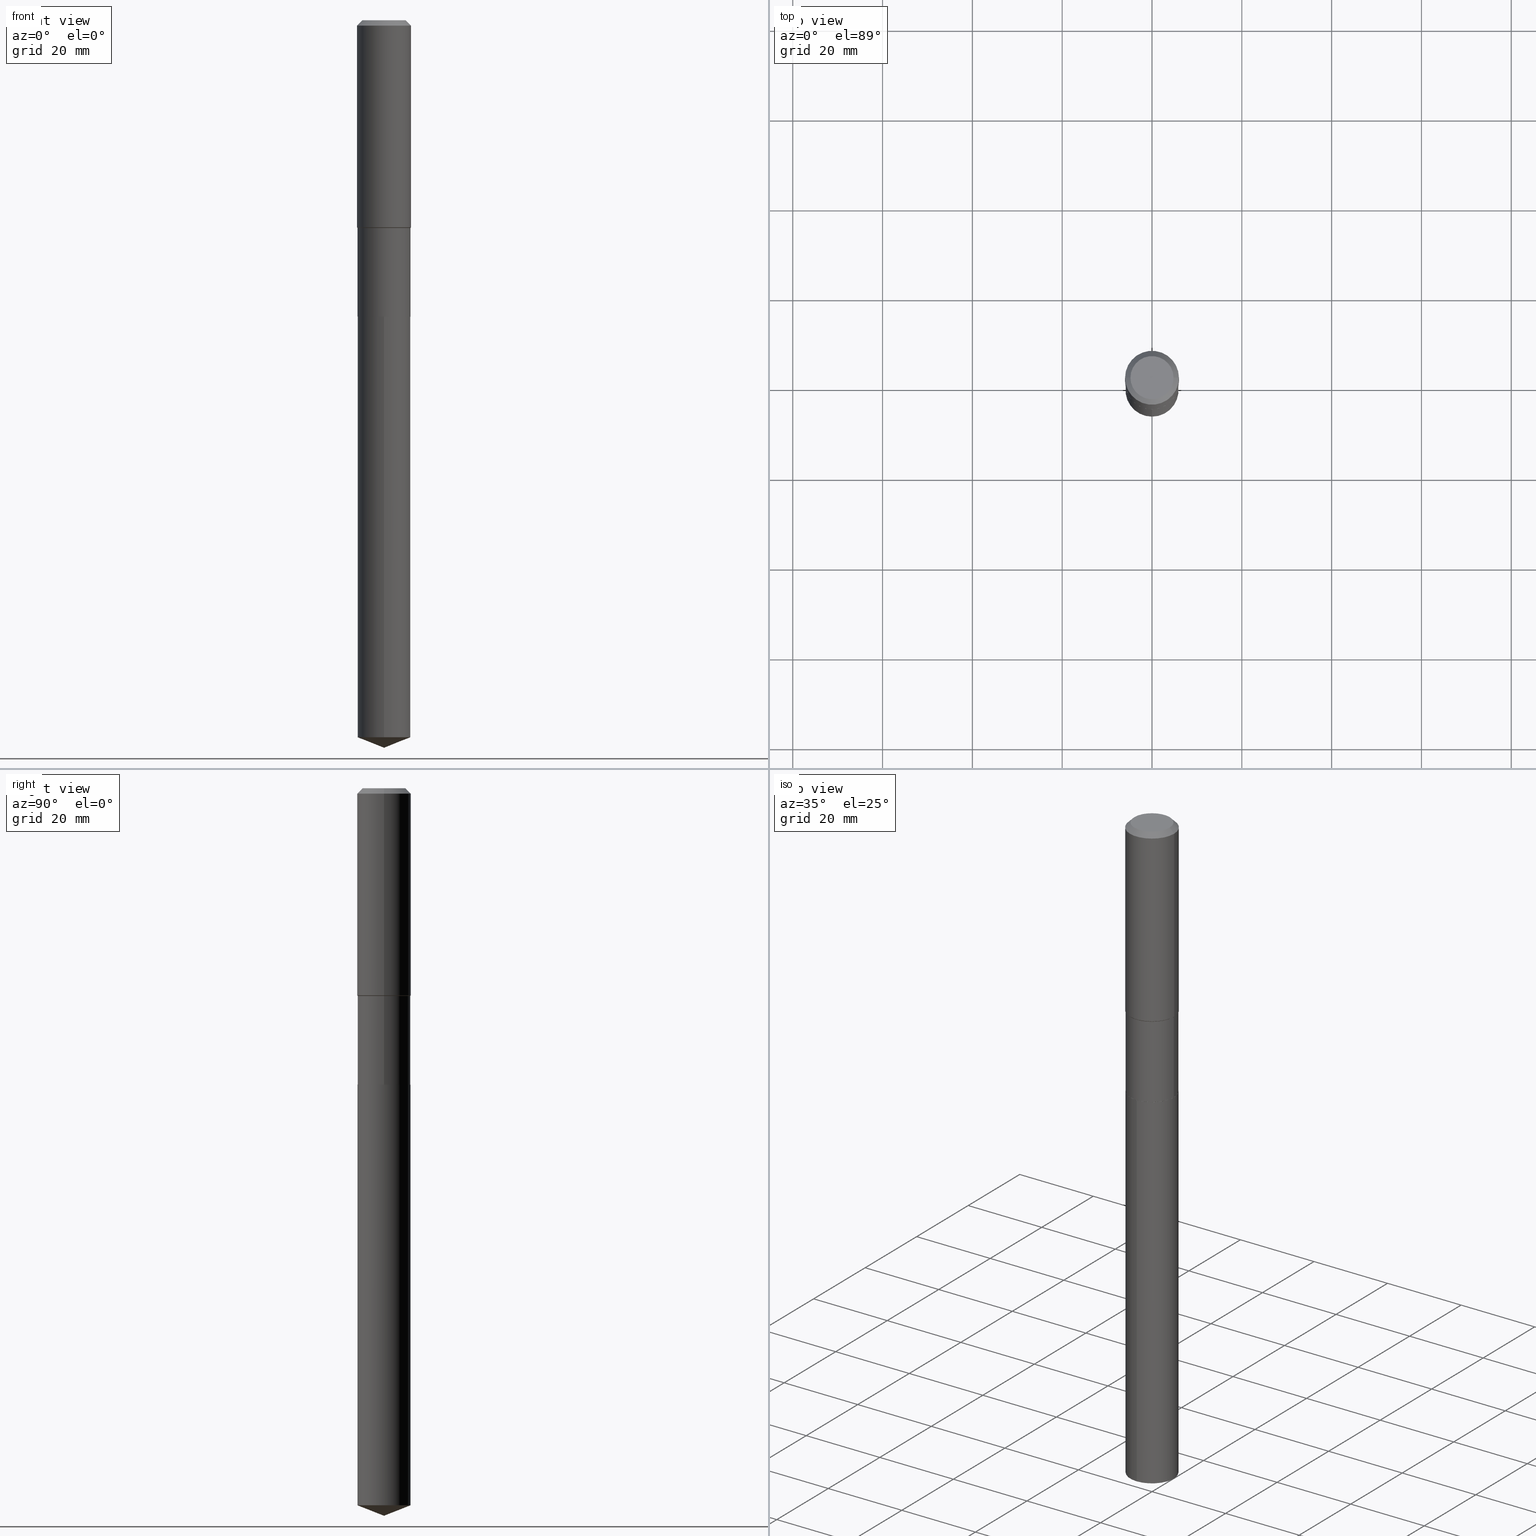
[diagram: canonical four-view strip — front | top / right | iso, engineering-drawing reading convention]
A machine part, canonical four-view strip (front | top / right | iso — engineering-drawing reading convention). The complete STEP part file that produces these views, byte-faithful:
ISO-10303-21;
HEADER;
FILE_DESCRIPTION (( 'STEP AP203' ),
    '1' );
FILE_NAME ('66694.STEP',
    '2024-04-25T03:53:48',
    ( '' ),
    ( '' ),
    'SwSTEP 2.0',
    'SolidWorks 2023',
    '' );
FILE_SCHEMA (( 'CONFIG_CONTROL_DESIGN' ));
ENDSEC;

DATA;
#1 = ORIENTED_EDGE ( 'NONE', *, *, #306, .F. ) ;
#2 = EDGE_LOOP ( 'NONE', ( #283, #473, #324, #384 ) ) ;
#3 = APPROVAL_DATE_TIME ( #336, #297 ) ;
#4 = VECTOR ( 'NONE', #469, 39.37007874015748143 ) ;
#5 = DIRECTION ( 'NONE',  ( -2.445468806185136597E-29, 3.491481338843145583E-15, 1.000000000000000000 ) ) ;
#6 = VECTOR ( 'NONE', #352, 39.37007874015748143 ) ;
#7 = PERSON_AND_ORGANIZATION ( #394, #97 ) ;
#8 =( LENGTH_UNIT ( ) NAMED_UNIT ( * ) SI_UNIT ( $, .METRE. ) );
#9 = DIRECTION ( 'NONE',  ( 1.000000000000000000, -6.982962677686269866E-15, 0.000000000000000000 ) ) ;
#10 = EDGE_CURVE ( 'NONE', #226, #483, #266, .T. ) ;
#11 = CARTESIAN_POINT ( 'NONE',  ( -0.2318000000000000060, -7.425227049358123504E-15, -2.598400000000001597 ) ) ;
#12 = FACE_OUTER_BOUND ( 'NONE', #188, .T. ) ;
#13 = CARTESIAN_POINT ( 'NONE',  ( -0.2323000000000000065, -6.061916928266857861E-15, -2.597900000000000542 ) ) ;
#14 = ORIENTED_EDGE ( 'NONE', *, *, #288, .F. ) ;
#15 = CIRCLE ( 'NONE', #155, 0.2362000000000000210 ) ;
#16 = DIRECTION ( 'NONE',  ( -0.7071067811865453523, 2.468850131082234184E-15, -0.7071067811865496822 ) ) ;
#17 = CARTESIAN_POINT ( 'NONE',  ( 1.559693320064520861E-28, -2.226835204495268597E-14, -6.377900000000001235 ) ) ;
#18 = ADVANCED_FACE ( 'NONE', ( #377 ), #200, .F. ) ;
#19 = CARTESIAN_POINT ( 'NONE',  ( -1.622142230026456186E-15, -0.2323000000000090826, -2.598400000000000265 ) ) ;
#20 = PERSON_AND_ORGANIZATION_ROLE ( 'creator' ) ;
#21 = CARTESIAN_POINT ( 'NONE',  ( 6.353083411588368076E-29, -9.070519370180611907E-15, -2.597900000000000542 ) ) ;
#22 = VECTOR ( 'NONE', #143, 39.37007874015748143 ) ;
#23 = CC_DESIGN_SECURITY_CLASSIFICATION ( #236, ( #471 ) ) ;
#24 = EDGE_LOOP ( 'NONE', ( #42, #120, #150, #256 ) ) ;
#25 = FACE_OUTER_BOUND ( 'NONE', #225, .T. ) ;
#26 = APPROVAL_DATE_TIME ( #358, #50 ) ;
#27 = LOCAL_TIME ( 23, 53, 48.00000000000000000, #216 ) ;
#28 = ORIENTED_EDGE ( 'NONE', *, *, #437, .F. ) ;
#29 = DIRECTION ( 'NONE',  ( 1.000000000000000000, -6.982962677686268288E-15, 0.000000000000000000 ) ) ;
#30 = CARTESIAN_POINT ( 'NONE',  ( 4.450753227256950983E-29, -6.354496036694527792E-15, -1.820000000000000728 ) ) ;
#31 = EDGE_CURVE ( 'NONE', #417, #192, #163, .T. ) ;
#32 = ORIENTED_EDGE ( 'NONE', *, *, #444, .F. ) ;
#33 = CC_DESIGN_PERSON_AND_ORGANIZATION_ASSIGNMENT ( #185, #415, ( #471 ) ) ;
#34 = APPLICATION_CONTEXT ( 'configuration controlled 3d designs of mechanical parts and assemblies' ) ;
#35 = EDGE_LOOP ( 'NONE', ( #14, #480, #413, #462 ) ) ;
#36 = DIRECTION ( 'NONE',  ( -2.445449169258695004E-29, 3.491509460039474509E-15, 1.000000000000000000 ) ) ;
#37 = AXIS2_PLACEMENT_3D ( 'NONE', #376, #113, #329 ) ;
#38 = EDGE_CURVE ( 'NONE', #483, #189, #251, .T. ) ;
#39 = AXIS2_PLACEMENT_3D ( 'NONE', #269, #311, #436 ) ;
#40 = ORIENTED_EDGE ( 'NONE', *, *, #444, .T. ) ;
#41 = DIRECTION ( 'NONE',  ( -2.445468806185136877E-29, 3.491481338843145188E-15, 1.000000000000000000 ) ) ;
#42 = ORIENTED_EDGE ( 'NONE', *, *, #31, .F. ) ;
#43 = DIRECTION ( 'NONE',  ( 1.000000000000000000, -6.982962677686269866E-15, 0.000000000000000000 ) ) ;
#44 = DIRECTION ( 'NONE',  ( -2.438088387897960049E-29, 3.491481338843145188E-15, 1.000000000000000000 ) ) ;
#45 = ADVANCED_FACE ( 'NONE', ( #227 ), #379, .T. ) ;
#46 = DIRECTION ( 'NONE',  ( -2.445468806185136597E-29, 3.491481338843145583E-15, 1.000000000000000000 ) ) ;
#47 = CONICAL_SURFACE ( 'NONE', #447, 0.2318000000000000060, 0.7853981633967311859 ) ;
#48 =( CONVERSION_BASED_UNIT ( 'INCH', #388 ) LENGTH_UNIT ( ) NAMED_UNIT ( #434 ) );
#49 = ORIENTED_EDGE ( 'NONE', *, *, #443, .F. ) ;
#50 = APPROVAL ( #317, 'UNSPECIFIED' ) ;
#51 = DIRECTION ( 'NONE',  ( 2.445468806185136597E-29, -3.491481338843145583E-15, -1.000000000000000000 ) ) ;
#52 = EDGE_CURVE ( 'NONE', #460, #81, #174, .T. ) ;
#53 = ORIENTED_EDGE ( 'NONE', *, *, #349, .F. ) ;
#54 = CARTESIAN_POINT ( 'NONE',  ( 0.000000000000000000, 0.000000000000000000, 0.000000000000000000 ) ) ;
#55 = DIRECTION ( 'NONE',  ( -2.445468806185136597E-29, 3.491481338843145583E-15, 1.000000000000000000 ) ) ;
#56 = MANIFOLD_SOLID_BREP ( 'Body-Move/Copy2[2]', #195 ) ;
#57 = PRODUCT_DEFINITION_SHAPE ( 'NONE', 'NONE',  #398 ) ;
#58 = LINE ( 'NONE', #467, #96 ) ;
#59 = LINE ( 'NONE', #350, #201 ) ;
#60 = CONICAL_SURFACE ( 'NONE', #302, 0.2322999999999998955, 0.7853981633974658205 ) ;
#61 = COORDINATED_UNIVERSAL_TIME_OFFSET ( 5, 0, .BEHIND. ) ;
#62 = EDGE_CURVE ( 'NONE', #107, #417, #183, .T. ) ;
#63 = ORIENTED_EDGE ( 'NONE', *, *, #52, .T. ) ;
#64 = CARTESIAN_POINT ( 'NONE',  ( 1.559683025661503327E-28, -2.226849818518576806E-14, -6.377900000000001235 ) ) ;
#65 = DIRECTION ( 'NONE',  ( -6.982962677686265922E-15, -1.000000000000000000, 2.351999994545211393E-15 ) ) ;
#66 = ORIENTED_EDGE ( 'NONE', *, *, #219, .T. ) ;
#67 = CARTESIAN_POINT ( 'NONE',  ( 1.155239464041866207E-30, -1.649375784469512845E-16, -0.04724000000000030952 ) ) ;
#68 = COORDINATED_UNIVERSAL_TIME_OFFSET ( 5, 0, .BEHIND. ) ;
#69 = VECTOR ( 'NONE', #16, 39.37007874015748143 ) ;
#70 = LOCAL_TIME ( 23, 53, 48.00000000000000000, #333 ) ;
#71 = CC_DESIGN_DATE_AND_TIME_ASSIGNMENT ( #72, #355, ( #236 ) ) ;
#72 = DATE_AND_TIME ( #149, #121 ) ;
#73 = EDGE_LOOP ( 'NONE', ( #53, #209, #356, #49 ) ) ;
#74 = ADVANCED_FACE ( 'NONE', ( #229 ), #124, .T. ) ;
#75 = FACE_OUTER_BOUND ( 'NONE', #2, .T. ) ;
#76 = ORIENTED_EDGE ( 'NONE', *, *, #219, .F. ) ;
#77 = DIRECTION ( 'NONE',  ( 1.000000000000000000, -6.982962677686265922E-15, 0.000000000000000000 ) ) ;
#78 = PERSON_AND_ORGANIZATION_ROLE ( 'design_owner' ) ;
#79 = PLANE ( 'NONE',  #128 ) ;
#80 = VECTOR ( 'NONE', #400, 39.37007874015748143 ) ;
#81 = VERTEX_POINT ( 'NONE', #156 ) ;
#82 = LINE ( 'NONE', #85, #488 ) ;
#83 = CALENDAR_DATE ( 2024, 24, 4 ) ;
#84 = CARTESIAN_POINT ( 'NONE',  ( 0.000000000000000000, 0.000000000000000000, 0.000000000000000000 ) ) ;
#85 = CARTESIAN_POINT ( 'NONE',  ( -0.2322999999999999510, 1.650590775170712383E-15, -1.142668621466214426E-29 ) ) ;
#86 = CALENDAR_DATE ( 2024, 24, 4 ) ;
#87 = DIRECTION ( 'NONE',  ( -2.445468806185136597E-29, 3.491481338843145583E-15, 1.000000000000000000 ) ) ;
#88 = ORIENTED_EDGE ( 'NONE', *, *, #487, .T. ) ;
#89 = CARTESIAN_POINT ( 'NONE',  ( 1.650590775170866606E-15, 0.2322999999999908749, -2.598400000000001597 ) ) ;
#90 = APPROVAL_PERSON_ORGANIZATION ( #427, #402, #146 ) ;
#91 = FACE_OUTER_BOUND ( 'NONE', #254, .T. ) ;
#92 = ADVANCED_FACE ( 'NONE', ( #262 ), #428, .F. ) ;
#93 = CARTESIAN_POINT ( 'NONE',  ( 1.155239464041866207E-30, -1.649375784469512845E-16, -0.04724000000000030952 ) ) ;
#94 = ADVANCED_FACE ( 'NONE', ( #75 ), #60, .T. ) ;
#95 = DIRECTION ( 'NONE',  ( 0.7071067811860403118, -2.468850131076945266E-15, 0.7071067811870545006 ) ) ;
#96 = VECTOR ( 'NONE', #168, 39.37007874015748143 ) ;
#97 = ORGANIZATION ( 'UNSPECIFIED', 'UNSPECIFIED', '' ) ;
#98 = LINE ( 'NONE', #131, #69 ) ;
#99 =( NAMED_UNIT ( * ) SI_UNIT ( $, .STERADIAN. ) SOLID_ANGLE_UNIT ( ) );
#100 = VERTEX_POINT ( 'NONE', #89 ) ;
#101 = DIRECTION ( 'NONE',  ( -6.982962677686267499E-15, -1.000000000000000000, 3.498627837350013689E-15 ) ) ;
#102 = LINE ( 'NONE', #130, #4 ) ;
#103 = DIRECTION ( 'NONE',  ( 1.000000000000000000, -6.982962677686268288E-15, 0.000000000000000000 ) ) ;
#104 = DIRECTION ( 'NONE',  ( -2.445449169258695004E-29, 3.491509460039474509E-15, 1.000000000000000000 ) ) ;
#105 = ORIENTED_EDGE ( 'NONE', *, *, #198, .F. ) ;
#106 = APPROVAL_ROLE ( '' ) ;
#107 = VERTEX_POINT ( 'NONE', #295 ) ;
#108 = DIRECTION ( 'NONE',  ( -6.982962677686265922E-15, -1.000000000000000000, 2.351999994545211393E-15 ) ) ;
#109 = VECTOR ( 'NONE', #365, 39.37007874015748143 ) ;
#110 = AXIS2_PLACEMENT_3D ( 'NONE', #245, #151, #211 ) ;
#111 = CC_DESIGN_DATE_AND_TIME_ASSIGNMENT ( #228, #380, ( #398 ) ) ;
#112 = EDGE_LOOP ( 'NONE', ( #325, #28 ) ) ;
#113 = DIRECTION ( 'NONE',  ( 2.445449169258694724E-29, -3.491509460039474509E-15, -1.000000000000000000 ) ) ;
#114 = ORIENTED_EDGE ( 'NONE', *, *, #335, .T. ) ;
#115 = DIRECTION ( 'NONE',  ( 0.000000000000000000, 0.000000000000000000, 1.000000000000000000 ) ) ;
#116 = FACE_OUTER_BOUND ( 'NONE', #285, .T. ) ;
#117 = ORIENTED_EDGE ( 'NONE', *, *, #383, .T. ) ;
#118 = CARTESIAN_POINT ( 'NONE',  ( 4.450753227256950983E-29, -6.354496036694527792E-15, -1.820000000000000728 ) ) ;
#119 = CIRCLE ( 'NONE', #397, 0.2362000000000000210 ) ;
#120 = ORIENTED_EDGE ( 'NONE', *, *, #62, .F. ) ;
#121 = LOCAL_TIME ( 23, 53, 48.00000000000000000, #61 ) ;
#122 = DIRECTION ( 'NONE',  ( 1.000000000000000000, -6.982962677686267499E-15, 0.000000000000000000 ) ) ;
#123 = PERSON_AND_ORGANIZATION_ROLE ( 'creator' ) ;
#124 = CYLINDRICAL_SURFACE ( 'NONE', #464, 0.2362000000000001321 ) ;
#125 = EDGE_CURVE ( 'NONE', #153, #140, #327, .T. ) ;
#126 = CARTESIAN_POINT ( 'NONE',  ( -0.2322999999999998955, -6.061916928266857861E-15, -1.820000000000000728 ) ) ;
#127 = ORIENTED_EDGE ( 'NONE', *, *, #306, .T. ) ;
#128 = AXIS2_PLACEMENT_3D ( 'NONE', #224, #372, #463 ) ;
#129 = AXIS2_PLACEMENT_3D ( 'NONE', #275, #241, #103 ) ;
#130 = CARTESIAN_POINT ( 'NONE',  ( -0.2322999999999998955, -4.703905261523816198E-15, -1.820000000000000728 ) ) ;
#131 = CARTESIAN_POINT ( 'NONE',  ( -0.2362000000000000210, 1.484438206022545019E-15, -0.04724000000000030952 ) ) ;
#132 = ADVANCED_FACE ( 'NONE', ( #116 ), #79, .F. ) ;
#133 = CARTESIAN_POINT ( 'NONE',  ( -9.427742298522546243E-47, 1.346031739168365344E-32, 3.855188123715862256E-18 ) ) ;
#134 = EDGE_CURVE ( 'NONE', #81, #460, #370, .T. ) ;
#135 = CIRCLE ( 'NONE', #252, 0.2318000000000000060 ) ;
#136 = DIRECTION ( 'NONE',  ( -1.000000000000000000, 6.982962677686267499E-15, 0.000000000000000000 ) ) ;
#137 = CONICAL_SURFACE ( 'NONE', #478, 0.2318000000000000060, 0.7853981633967311859 ) ;
#138 = CARTESIAN_POINT ( 'NONE',  ( 4.450753227256950983E-29, -6.354496036694527792E-15, -1.820000000000000728 ) ) ;
#139 = EDGE_CURVE ( 'NONE', #189, #140, #382, .T. ) ;
#140 = VERTEX_POINT ( 'NONE', #345 ) ;
#141 = CARTESIAN_POINT ( 'NONE',  ( 1.537310946826876849E-28, -2.194893313315539797E-14, -6.286394596514650601 ) ) ;
#142 = APPROVAL_DATE_TIME ( #364, #402 ) ;
#143 = DIRECTION ( 'NONE',  ( -2.445468806185136877E-29, 3.491481338843145188E-15, 1.000000000000000000 ) ) ;
#144 = ORIENTED_EDGE ( 'NONE', *, *, #38, .F. ) ;
#145 = DIRECTION ( 'NONE',  ( -2.445449169258695004E-29, 3.491509460039474509E-15, 1.000000000000000000 ) ) ;
#146 = APPROVAL_ROLE ( '' ) ;
#147 = AXIS2_PLACEMENT_3D ( 'NONE', #310, #51, #136 ) ;
#148 = ORIENTED_EDGE ( 'NONE', *, *, #349, .T. ) ;
#149 = CALENDAR_DATE ( 2024, 24, 4 ) ;
#150 = ORIENTED_EDGE ( 'NONE', *, *, #152, .T. ) ;
#151 = DIRECTION ( 'NONE',  ( 2.445468806185136597E-29, -3.491481338843145583E-15, -1.000000000000000000 ) ) ;
#152 = EDGE_CURVE ( 'NONE', #107, #419, #98, .T. ) ;
#153 = VERTEX_POINT ( 'NONE', #126 ) ;
#154 = ADVANCED_FACE ( 'NONE', ( #348 ), #199, .T. ) ;
#155 = AXIS2_PLACEMENT_3D ( 'NONE', #93, #237, #307 ) ;
#156 = CARTESIAN_POINT ( 'NONE',  ( -0.2362000000000002431, -4.662577317607680515E-15, -1.816100000000000714 ) ) ;
#157 = ORIENTED_EDGE ( 'NONE', *, *, #288, .T. ) ;
#158 = ORIENTED_EDGE ( 'NONE', *, *, #414, .F. ) ;
#159 = FACE_OUTER_BOUND ( 'NONE', #248, .T. ) ;
#160 = DIRECTION ( 'NONE',  ( 1.000000000000000000, 0.000000000000000000, 0.000000000000000000 ) ) ;
#161 = AXIS2_PLACEMENT_3D ( 'NONE', #118, #218, #461 ) ;
#162 = APPROVAL_PERSON_ORGANIZATION ( #258, #297, #222 ) ;
#163 = LINE ( 'NONE', #367, #109 ) ;
#164 = DIRECTION ( 'NONE',  ( 1.000000000000000000, -6.982962677686265922E-15, 0.000000000000000000 ) ) ;
#165 = CC_DESIGN_PERSON_AND_ORGANIZATION_ASSIGNMENT ( #250, #20, ( #471 ) ) ;
#166 = ORIENTED_EDGE ( 'NONE', *, *, #38, .T. ) ;
#167 = CARTESIAN_POINT ( 'NONE',  ( 0.2318000000000000060, -1.069091585953771226E-14, -2.598400000000001597 ) ) ;
#168 = DIRECTION ( 'NONE',  ( 0.7071067811865598962, -2.468850131082386434E-15, 0.7071067811865351382 ) ) ;
#169 = CARTESIAN_POINT ( 'NONE',  ( 2.077507312330397648E-29, -1.519688446092529294E-14, -2.598400000000001597 ) ) ;
#170 = AXIS2_PLACEMENT_3D ( 'NONE', #260, #261, #425 ) ;
#171 = AXIS2_PLACEMENT_3D ( 'NONE', #54, #432, #392 ) ;
#172 = CARTESIAN_POINT ( 'NONE',  ( 6.354306145991461998E-29, -9.072265110850035778E-15, -2.598400000000001597 ) ) ;
#173 = CC_DESIGN_PERSON_AND_ORGANIZATION_ASSIGNMENT ( #375, #78, ( #213 ) ) ;
#174 = CIRCLE ( 'NONE', #385, 0.2362000000000002431 ) ;
#175 = VERTEX_POINT ( 'NONE', #19 ) ;
#176 = ADVANCED_FACE ( 'NONE', ( #12 ), #439, .T. ) ;
#177 = DIRECTION ( 'NONE',  ( -6.982962677686265922E-15, -1.000000000000000000, 4.703999989090422785E-15 ) ) ;
#178 = DIRECTION ( 'NONE',  ( -2.445468806185136597E-29, 3.491481338843145583E-15, 1.000000000000000000 ) ) ;
#179 = SHAPE_DEFINITION_REPRESENTATION ( #57, #342 ) ;
#180 = CARTESIAN_POINT ( 'NONE',  ( 6.354306145991460877E-29, -9.072265110850034200E-15, -2.598400000000000709 ) ) ;
#181 = ORIENTED_EDGE ( 'NONE', *, *, #10, .F. ) ;
#182 = DIRECTION ( 'NONE',  ( 1.000000000000000000, -6.982962677686268288E-15, 0.000000000000000000 ) ) ;
#183 = CIRCLE ( 'NONE', #287, 0.1889600000000000168 ) ;
#184 = ORIENTED_EDGE ( 'NONE', *, *, #458, .F. ) ;
#185 = PERSON_AND_ORGANIZATION ( #394, #97 ) ;
#186 = DIRECTION ( 'NONE',  ( -2.445449169258695004E-29, 3.491509460039474509E-15, 1.000000000000000000 ) ) ;
#187 = EDGE_CURVE ( 'NONE', #153, #81, #102, .T. ) ;
#188 = EDGE_LOOP ( 'NONE', ( #184, #166, #320, #452 ) ) ;
#189 = VERTEX_POINT ( 'NONE', #341 ) ;
#190 = CARTESIAN_POINT ( 'NONE',  ( 4.441215898912827916E-29, -6.340879259473039276E-15, -1.816100000000000714 ) ) ;
#191 = AXIS2_PLACEMENT_3D ( 'NONE', #138, #232, #9 ) ;
#192 = VERTEX_POINT ( 'NONE', #240 ) ;
#193 = EDGE_CURVE ( 'NONE', #249, #175, #59, .T. ) ;
#194 = CARTESIAN_POINT ( 'NONE',  ( 4.450753227256950983E-29, -6.354496036694527792E-15, -1.820000000000000728 ) ) ;
#195 = CLOSED_SHELL ( 'NONE', ( #438, #286, #482, #234, #154, #176, #94, #74, #373, #132, #18, #399 ) ) ;
#196 = LOCAL_TIME ( 23, 53, 48.00000000000000000, #424 ) ;
#197 = ORIENTED_EDGE ( 'NONE', *, *, #247, .T. ) ;
#198 = EDGE_CURVE ( 'NONE', #140, #460, #58, .T. ) ;
#199 = CYLINDRICAL_SURFACE ( 'NONE', #223, 0.2322999999999999510 ) ;
#200 = PLANE ( 'NONE',  #319 ) ;
#201 = VECTOR ( 'NONE', #267, 39.37007874015748143 ) ;
#202 = EDGE_CURVE ( 'NONE', #417, #107, #361, .T. ) ;
#203 = AXIS2_PLACEMENT_3D ( 'NONE', #426, #263, #429 ) ;
#204 = EDGE_CURVE ( 'NONE', #369, #226, #135, .T. ) ;
#205 = APPROVAL_STATUS ( 'not_yet_approved' ) ;
#206 = CARTESIAN_POINT ( 'NONE',  ( 0.2322999999999999510, -1.622142230026519492E-15, 1.132735865017395539E-29 ) ) ;
#207 = CIRCLE ( 'NONE', #242, 0.2323000000000000065 ) ;
#208 = CALENDAR_DATE ( 2024, 24, 4 ) ;
#209 = ORIENTED_EDGE ( 'NONE', *, *, #423, .T. ) ;
#210 = CARTESIAN_POINT ( 'NONE',  ( 6.354306145991461998E-29, -9.072265110850035778E-15, -2.598400000000001597 ) ) ;
#211 = DIRECTION ( 'NONE',  ( -1.000000000000000000, 6.982962677686267499E-15, 0.000000000000000000 ) ) ;
#212 = ORIENTED_EDGE ( 'NONE', *, *, #487, .F. ) ;
#213 = PRODUCT ( '66694', '66694', '', ( #368 ) ) ;
#214 = CIRCLE ( 'NONE', #278, 0.2323000000000000065 ) ;
#215 = ORIENTED_EDGE ( 'NONE', *, *, #187, .T. ) ;
#216 = COORDINATED_UNIVERSAL_TIME_OFFSET ( 5, 0, .BEHIND. ) ;
#217 = ORIENTED_EDGE ( 'NONE', *, *, #335, .F. ) ;
#218 = DIRECTION ( 'NONE',  ( -2.445468806185136597E-29, 3.491481338843145583E-15, 1.000000000000000000 ) ) ;
#219 = EDGE_CURVE ( 'NONE', #192, #419, #15, .T. ) ;
#220 = ORIENTED_EDGE ( 'NONE', *, *, #383, .F. ) ;
#221 = CARTESIAN_POINT ( 'NONE',  ( 6.354306145991460877E-29, -9.072265110850034200E-15, -2.598400000000000709 ) ) ;
#222 = APPROVAL_ROLE ( '' ) ;
#223 = AXIS2_PLACEMENT_3D ( 'NONE', #309, #270, #344 ) ;
#224 = CARTESIAN_POINT ( 'NONE',  ( -4.713871149261273121E-47, 6.730158695841826722E-33, 1.927594061857931128E-18 ) ) ;
#225 = EDGE_LOOP ( 'NONE', ( #117, #148, #217, #485 ) ) ;
#226 = VERTEX_POINT ( 'NONE', #401 ) ;
#227 = FACE_OUTER_BOUND ( 'NONE', #73, .T. ) ;
#228 = DATE_AND_TIME ( #86, #196 ) ;
#229 = FACE_OUTER_BOUND ( 'NONE', #35, .T. ) ;
#230 =( GEOMETRIC_REPRESENTATION_CONTEXT ( 3 ) GLOBAL_UNCERTAINTY_ASSIGNED_CONTEXT ( ( #231 ) ) GLOBAL_UNIT_ASSIGNED_CONTEXT ( ( #48, #486, #99 ) ) REPRESENTATION_CONTEXT ( 'NONE', 'WORKASPACE' ) );
#231 = UNCERTAINTY_MEASURE_WITH_UNIT (LENGTH_MEASURE( 1.000000000000000082E-05 ), #48, 'distance_accuracy_value', 'NONE');
#232 = DIRECTION ( 'NONE',  ( -2.445468806185136597E-29, 3.491481338843145583E-15, 1.000000000000000000 ) ) ;
#233 = DIRECTION ( 'NONE',  ( 1.000000000000000000, -6.982962677686266711E-15, 4.876176775795935232E-29 ) ) ;
#234 = ADVANCED_FACE ( 'NONE', ( #91 ), #465, .T. ) ;
#235 = CARTESIAN_POINT ( 'NONE',  ( -1.622142230026366058E-15, -0.2323000000000219611, -6.286394596514649713 ) ) ;
#236 = SECURITY_CLASSIFICATION ( '', '', #484 ) ;
#237 = DIRECTION ( 'NONE',  ( -2.445468806185136597E-29, 3.491481338843145583E-15, 1.000000000000000000 ) ) ;
#238 = APPLICATION_CONTEXT ( 'configuration controlled 3d designs of mechanical parts and assemblies' ) ;
#239 = ADVANCED_FACE ( 'NONE', ( #391 ), #430, .T. ) ;
#240 = CARTESIAN_POINT ( 'NONE',  ( 0.2362000000000000210, -1.814313362916447834E-15, -0.04724000000000030952 ) ) ;
#241 = DIRECTION ( 'NONE',  ( -2.445468806185136597E-29, 3.491481338843145583E-15, 1.000000000000000000 ) ) ;
#242 = AXIS2_PLACEMENT_3D ( 'NONE', #411, #186, #108 ) ;
#243 = DIRECTION ( 'NONE',  ( -2.445468806185136597E-29, 3.491481338843145583E-15, 1.000000000000000000 ) ) ;
#244 = APPROVAL_PERSON_ORGANIZATION ( #408, #50, #106 ) ;
#245 = CARTESIAN_POINT ( 'NONE',  ( 1.155239464041866207E-30, -1.649375784469512845E-16, -0.04724000000000030952 ) ) ;
#246 = LINE ( 'NONE', #64, #321 ) ;
#247 = EDGE_CURVE ( 'NONE', #369, #189, #470, .T. ) ;
#248 = EDGE_LOOP ( 'NONE', ( #63, #157, #76, #158 ) ) ;
#249 = VERTEX_POINT ( 'NONE', #235 ) ;
#250 = PERSON_AND_ORGANIZATION ( #394, #97 ) ;
#251 = CIRCLE ( 'NONE', #337, 0.2323000000000000065 ) ;
#252 = AXIS2_PLACEMENT_3D ( 'NONE', #172, #264, #431 ) ;
#253 = EDGE_LOOP ( 'NONE', ( #212, #40, #393 ) ) ;
#254 = EDGE_LOOP ( 'NONE', ( #127, #215, #351, #105 ) ) ;
#255 = APPLICATION_PROTOCOL_DEFINITION ( 'international standard', 'config_control_design', 1994, #34 ) ;
#256 = ORIENTED_EDGE ( 'NONE', *, *, #454, .T. ) ;
#257 = DIRECTION ( 'NONE',  ( -2.445468806185136597E-29, 3.491481338843145583E-15, 1.000000000000000000 ) ) ;
#258 = PERSON_AND_ORGANIZATION ( #394, #97 ) ;
#259 = AXIS2_PLACEMENT_3D ( 'NONE', #141, #446, #177 ) ;
#260 = CARTESIAN_POINT ( 'NONE',  ( 4.441215898912827916E-29, -6.340879259473039276E-15, -1.816100000000000714 ) ) ;
#261 = DIRECTION ( 'NONE',  ( -2.445468806185136597E-29, 3.491481338843145583E-15, 1.000000000000000000 ) ) ;
#262 = FACE_OUTER_BOUND ( 'NONE', #449, .T. ) ;
#263 = DIRECTION ( 'NONE',  ( -2.445449169258695004E-29, 3.491509460039474509E-15, 1.000000000000000000 ) ) ;
#264 = DIRECTION ( 'NONE',  ( -2.445468806185136597E-29, 3.491481338843145583E-15, 1.000000000000000000 ) ) ;
#265 = CONICAL_SURFACE ( 'NONE', #456, 99.94676754583970535, 1.195550537616118625 ) ;
#266 = LINE ( 'NONE', #11, #312 ) ;
#267 = DIRECTION ( 'NONE',  ( -2.445449169258695004E-29, 3.491509460039474509E-15, 1.000000000000000000 ) ) ;
#268 = LINE ( 'NONE', #17, #459 ) ;
#269 = CARTESIAN_POINT ( 'NONE',  ( -8.068064506756283072E-28, 1.151925772486896208E-13, 32.99217874015747753 ) ) ;
#270 = DIRECTION ( 'NONE',  ( -2.445468806185136597E-29, 3.491481338843145583E-15, 1.000000000000000000 ) ) ;
#271 = AXIS2_PLACEMENT_3D ( 'NONE', #133, #55, #301 ) ;
#272 = CIRCLE ( 'NONE', #259, 0.2323000000000000065 ) ;
#273 = DIRECTION ( 'NONE',  ( -2.445468806185136877E-29, 3.491481338843145188E-15, 1.000000000000000000 ) ) ;
#274 = ADVANCED_FACE ( 'NONE', ( #25 ), #279, .T. ) ;
#275 = CARTESIAN_POINT ( 'NONE',  ( 6.354306145991461998E-29, -9.072265110850035778E-15, -2.598400000000001597 ) ) ;
#276 = PERSON_AND_ORGANIZATION ( #394, #97 ) ;
#277 = CARTESIAN_POINT ( 'NONE',  ( 1.559683025661503327E-28, -2.226849818518576806E-14, -6.377900000000001235 ) ) ;
#278 = AXIS2_PLACEMENT_3D ( 'NONE', #21, #360, #318 ) ;
#279 = CYLINDRICAL_SURFACE ( 'NONE', #347, 0.2323000000000000065 ) ;
#280 = EDGE_CURVE ( 'NONE', #189, #483, #214, .T. ) ;
#281 = ORIENTED_EDGE ( 'NONE', *, *, #31, .T. ) ;
#282 = DIRECTION ( 'NONE',  ( 1.000000000000000000, -6.982962677686269866E-15, 0.000000000000000000 ) ) ;
#283 = ORIENTED_EDGE ( 'NONE', *, *, #187, .F. ) ;
#284 = CARTESIAN_POINT ( 'NONE',  ( -0.2362000000000001321, 1.678301941865357577E-15, -1.161852468318209457E-29 ) ) ;
#285 = EDGE_LOOP ( 'NONE', ( #433, #455 ) ) ;
#286 = ADVANCED_FACE ( 'NONE', ( #451 ), #440, .T. ) ;
#287 = AXIS2_PLACEMENT_3D ( 'NONE', #490, #357, #466 ) ;
#288 = EDGE_CURVE ( 'NONE', #81, #419, #481, .T. ) ;
#289 = AXIS2_PLACEMENT_3D ( 'NONE', #359, #104, #410 ) ;
#290 = DIRECTION ( 'NONE',  ( -2.445468806185136597E-29, 3.491481338843145583E-15, 1.000000000000000000 ) ) ;
#291 = EDGE_LOOP ( 'NONE', ( #418, #326, #1, #293 ) ) ;
#292 = APPROVAL_STATUS ( 'not_yet_approved' ) ;
#293 = ORIENTED_EDGE ( 'NONE', *, *, #139, .F. ) ;
#294 = CARTESIAN_POINT ( 'NONE',  ( 0.000000000000000000, 0.000000000000000000, 0.000000000000000000 ) ) ;
#295 = CARTESIAN_POINT ( 'NONE',  ( -0.1889600000000000168, 1.401969416799070942E-15, 3.855188123706346622E-18 ) ) ;
#296 = AXIS2_PLACEMENT_3D ( 'NONE', #435, #441, #233 ) ;
#297 = APPROVAL ( #292, 'UNSPECIFIED' ) ;
#298 = CIRCLE ( 'NONE', #289, 0.2323000000000000065 ) ;
#299 = CC_DESIGN_PERSON_AND_ORGANIZATION_ASSIGNMENT ( #7, #123, ( #398 ) ) ;
#300 = FACE_OUTER_BOUND ( 'NONE', #24, .T. ) ;
#301 = DIRECTION ( 'NONE',  ( 1.000000000000000000, -6.982962677686266711E-15, 4.876185090822587894E-29 ) ) ;
#302 = AXIS2_PLACEMENT_3D ( 'NONE', #194, #87, #43 ) ;
#303 = CONICAL_SURFACE ( 'NONE', #147, 0.2362000000000000210, 0.7853981633974452814 ) ;
#304 = CC_DESIGN_APPROVAL ( #402, ( #471 ) ) ;
#305 = VERTEX_POINT ( 'NONE', #277 ) ;
#306 = EDGE_CURVE ( 'NONE', #140, #153, #387, .T. ) ;
#307 = DIRECTION ( 'NONE',  ( 1.000000000000000000, -6.982962677686267499E-15, 0.000000000000000000 ) ) ;
#308 = DIRECTION ( 'NONE',  ( 6.611014441532064222E-15, 0.9304175679820269051, 0.3665012267242913624 ) ) ;
#309 = CARTESIAN_POINT ( 'NONE',  ( 0.000000000000000000, 0.000000000000000000, 0.000000000000000000 ) ) ;
#310 = CARTESIAN_POINT ( 'NONE',  ( 1.155239464041866207E-30, -1.649375784469512845E-16, -0.04724000000000030952 ) ) ;
#311 = DIRECTION ( 'NONE',  ( -2.445449169258695004E-29, 3.491509460039474509E-15, 1.000000000000000000 ) ) ;
#312 = VECTOR ( 'NONE', #468, 39.37007874015748854 ) ;
#313 = VECTOR ( 'NONE', #95, 39.37007874015748854 ) ;
#314 = CARTESIAN_POINT ( 'NONE',  ( -8.068064506756283072E-28, 1.151925772486896208E-13, 32.99217874015747753 ) ) ;
#315 = ORIENTED_EDGE ( 'NONE', *, *, #10, .T. ) ;
#316 = CALENDAR_DATE ( 2024, 24, 4 ) ;
#317 = APPROVAL_STATUS ( 'not_yet_approved' ) ;
#318 = DIRECTION ( 'NONE',  ( 1.000000000000000000, -6.982962677686265922E-15, 0.000000000000000000 ) ) ;
#319 = AXIS2_PLACEMENT_3D ( 'NONE', #169, #44, #472 ) ;
#320 = ORIENTED_EDGE ( 'NONE', *, *, #139, .T. ) ;
#321 = VECTOR ( 'NONE', #322, 39.37007874015748854 ) ;
#322 = DIRECTION ( 'NONE',  ( -6.497071151882117470E-15, -0.9304175679820243516, 0.3665012267242979127 ) ) ;
#323 = DIRECTION ( 'NONE',  ( -2.445468806185136597E-29, 3.491481338843145583E-15, 1.000000000000000000 ) ) ;
#324 = ORIENTED_EDGE ( 'NONE', *, *, #198, .T. ) ;
#325 = ORIENTED_EDGE ( 'NONE', *, *, #204, .F. ) ;
#326 = ORIENTED_EDGE ( 'NONE', *, *, #458, .T. ) ;
#327 = CIRCLE ( 'NONE', #161, 0.2322999999999998955 ) ;
#328 = AXIS2_PLACEMENT_3D ( 'NONE', #30, #323, #282 ) ;
#329 = DIRECTION ( 'NONE',  ( 6.982962677686265922E-15, 1.000000000000000000, -3.491509460039474509E-15 ) ) ;
#330 = ORIENTED_EDGE ( 'NONE', *, *, #202, .F. ) ;
#331 = CARTESIAN_POINT ( 'NONE',  ( 0.2362000000000002431, -7.990255043942538167E-15, -1.816100000000000714 ) ) ;
#332 = DIRECTION ( 'NONE',  ( -6.982962677686265922E-15, -1.000000000000000000, 2.351999994545211393E-15 ) ) ;
#333 = COORDINATED_UNIVERSAL_TIME_OFFSET ( 5, 0, .BEHIND. ) ;
#334 = DIRECTION ( 'NONE',  ( 1.000000000000000000, -6.982962677686266711E-15, 4.876176775795936353E-29 ) ) ;
#335 = EDGE_CURVE ( 'NONE', #175, #100, #207, .T. ) ;
#336 = DATE_AND_TIME ( #83, #70 ) ;
#337 = AXIS2_PLACEMENT_3D ( 'NONE', #422, #257, #77 ) ;
#338 = CC_DESIGN_APPROVAL ( #297, ( #398 ) ) ;
#339 = CARTESIAN_POINT ( 'NONE',  ( 1.650590775170866606E-15, 0.2322999999999781073, -6.286394596514651489 ) ) ;
#340 = EDGE_LOOP ( 'NONE', ( #374, #315, #421, #409 ) ) ;
#341 = CARTESIAN_POINT ( 'NONE',  ( 0.2323000000000000065, -1.069266160020713140E-14, -2.597900000000000542 ) ) ;
#342 = ADVANCED_BREP_SHAPE_REPRESENTATION ( '66694', ( #381, #56, #363 ), #230 ) ;
#343 = CARTESIAN_POINT ( 'NONE',  ( 6.354306145991461998E-29, -9.072265110850035778E-15, -2.598400000000001597 ) ) ;
#344 = DIRECTION ( 'NONE',  ( 1.000000000000000000, -6.982962677686266711E-15, 4.876176775795935232E-29 ) ) ;
#345 = CARTESIAN_POINT ( 'NONE',  ( 0.2322999999999998955, -7.976638266721048073E-15, -1.820000000000000728 ) ) ;
#346 = VECTOR ( 'NONE', #273, 39.37007874015748143 ) ;
#347 = AXIS2_PLACEMENT_3D ( 'NONE', #180, #145, #65 ) ;
#348 = FACE_OUTER_BOUND ( 'NONE', #291, .T. ) ;
#349 = EDGE_CURVE ( 'NONE', #489, #100, #416, .T. ) ;
#350 = CARTESIAN_POINT ( 'NONE',  ( -1.622142230026456186E-15, -0.2323000000000090826, -2.598400000000000265 ) ) ;
#351 = ORIENTED_EDGE ( 'NONE', *, *, #52, .F. ) ;
#352 = DIRECTION ( 'NONE',  ( -2.445468806185136877E-29, 3.491481338843145188E-15, 1.000000000000000000 ) ) ;
#353 = CIRCLE ( 'NONE', #129, 0.2318000000000000060 ) ;
#354 = CARTESIAN_POINT ( 'NONE',  ( 0.2362000000000001321, -1.649375784469497117E-15, 1.151752954443000789E-29 ) ) ;
#355 = DATE_TIME_ROLE ( 'classification_date' ) ;
#356 = ORIENTED_EDGE ( 'NONE', *, *, #193, .T. ) ;
#357 = DIRECTION ( 'NONE',  ( -2.445468806185136597E-29, 3.491481338843145583E-15, 1.000000000000000000 ) ) ;
#358 = DATE_AND_TIME ( #316, #27 ) ;
#359 = CARTESIAN_POINT ( 'NONE',  ( 6.354306145991460877E-29, -9.072265110850034200E-15, -2.598400000000000709 ) ) ;
#360 = DIRECTION ( 'NONE',  ( -2.445468806185136597E-29, 3.491481338843145583E-15, 1.000000000000000000 ) ) ;
#361 = CIRCLE ( 'NONE', #271, 0.1889600000000000168 ) ;
#362 = EDGE_LOOP ( 'NONE', ( #32, #88, #220 ) ) ;
#363 = AXIS2_PLACEMENT_3D ( 'NONE', #294, #115, #160 ) ;
#364 = DATE_AND_TIME ( #208, #448 ) ;
#365 = DIRECTION ( 'NONE',  ( 0.7071067811865453523, -7.319954787623248157E-15, -0.7071067811865496822 ) ) ;
#366 = ORIENTED_EDGE ( 'NONE', *, *, #443, .T. ) ;
#367 = CARTESIAN_POINT ( 'NONE',  ( 0.2362000000000000210, -1.785387205520587177E-15, -0.04724000000000030952 ) ) ;
#368 = MECHANICAL_CONTEXT ( 'NONE', #238, 'mechanical' ) ;
#369 = VERTEX_POINT ( 'NONE', #167 ) ;
#370 = CIRCLE ( 'NONE', #170, 0.2362000000000002431 ) ;
#371 = APPLICATION_PROTOCOL_DEFINITION ( 'international standard', 'config_control_design', 1994, #238 ) ;
#372 = DIRECTION ( 'NONE',  ( 2.438088387897960049E-29, -3.491481338843145188E-15, -1.000000000000000000 ) ) ;
#373 = ADVANCED_FACE ( 'NONE', ( #300 ), #303, .T. ) ;
#374 = ORIENTED_EDGE ( 'NONE', *, *, #204, .T. ) ;
#375 = PERSON_AND_ORGANIZATION ( #394, #97 ) ;
#376 = CARTESIAN_POINT ( 'NONE',  ( 6.354306145991460877E-29, -9.072265110850034200E-15, -2.598400000000000709 ) ) ;
#377 = FACE_OUTER_BOUND ( 'NONE', #112, .T. ) ;
#378 = CYLINDRICAL_SURFACE ( 'NONE', #171, 0.2362000000000001321 ) ;
#379 = CYLINDRICAL_SURFACE ( 'NONE', #386, 0.2323000000000000065 ) ;
#380 = DATE_TIME_ROLE ( 'creation_date' ) ;
#381 = MANIFOLD_SOLID_BREP ( 'Body-Move/Copy2[1]', #412 ) ;
#382 = LINE ( 'NONE', #206, #346 ) ;
#383 = EDGE_CURVE ( 'NONE', #249, #489, #420, .T. ) ;
#384 = ORIENTED_EDGE ( 'NONE', *, *, #134, .F. ) ;
#385 = AXIS2_PLACEMENT_3D ( 'NONE', #190, #5, #164 ) ;
#386 = AXIS2_PLACEMENT_3D ( 'NONE', #221, #36, #332 ) ;
#387 = CIRCLE ( 'NONE', #328, 0.2322999999999998955 ) ;
#388 = LENGTH_MEASURE_WITH_UNIT ( LENGTH_MEASURE( 0.02539999999999999897 ), #8 );
#389 = EDGE_LOOP ( 'NONE', ( #330, #281, #66, #457 ) ) ;
#390 = FACE_OUTER_BOUND ( 'NONE', #407, .T. ) ;
#391 = FACE_OUTER_BOUND ( 'NONE', #253, .T. ) ;
#392 = DIRECTION ( 'NONE',  ( 1.000000000000000000, -6.982962677686266711E-15, 4.876176775795936353E-29 ) ) ;
#393 = ORIENTED_EDGE ( 'NONE', *, *, #423, .F. ) ;
#394 = PERSON ( 'UNSPECIFIED', 'UNSPECIFIED', 'UNSPECIFIED', ('UNSPECIFIED'), ('UNSPECIFIED'), ('UNSPECIFIED') ) ;
#395 = CC_DESIGN_PERSON_AND_ORGANIZATION_ASSIGNMENT ( #276, #404, ( #236 ) ) ;
#396 = CARTESIAN_POINT ( 'NONE',  ( 0.2318000000000000060, -1.069091585953771226E-14, -2.598400000000001597 ) ) ;
#397 = AXIS2_PLACEMENT_3D ( 'NONE', #67, #46, #122 ) ;
#398 = PRODUCT_DEFINITION ( 'UNKNOWN', '', #471, #475 ) ;
#399 = ADVANCED_FACE ( 'NONE', ( #390 ), #137, .T. ) ;
#400 = DIRECTION ( 'NONE',  ( -2.445449169258695004E-29, 3.491509460039474509E-15, 1.000000000000000000 ) ) ;
#401 = CARTESIAN_POINT ( 'NONE',  ( -0.2318000000000000060, -7.422577822184011514E-15, -2.598400000000001597 ) ) ;
#402 = APPROVAL ( #205, 'UNSPECIFIED' ) ;
#403 = DIRECTION ( 'NONE',  ( -2.445449169258695004E-29, 3.491509460039474509E-15, 1.000000000000000000 ) ) ;
#404 = PERSON_AND_ORGANIZATION_ROLE ( 'classification_officer' ) ;
#405 = ADVANCED_FACE ( 'NONE', ( #477 ), #265, .T. ) ;
#406 = FACE_OUTER_BOUND ( 'NONE', #340, .T. ) ;
#407 = EDGE_LOOP ( 'NONE', ( #181, #476, #197, #144 ) ) ;
#408 = PERSON_AND_ORGANIZATION ( #394, #97 ) ;
#409 = ORIENTED_EDGE ( 'NONE', *, *, #247, .F. ) ;
#410 = DIRECTION ( 'NONE',  ( -6.982962677686265922E-15, -1.000000000000000000, 2.351999994545211393E-15 ) ) ;
#411 = CARTESIAN_POINT ( 'NONE',  ( 6.354306145991460877E-29, -9.072265110850034200E-15, -2.598400000000000709 ) ) ;
#412 = CLOSED_SHELL ( 'NONE', ( #274, #405, #239, #45, #92 ) ) ;
#413 = ORIENTED_EDGE ( 'NONE', *, *, #414, .T. ) ;
#414 = EDGE_CURVE ( 'NONE', #460, #192, #450, .T. ) ;
#415 = PERSON_AND_ORGANIZATION_ROLE ( 'design_supplier' ) ;
#416 = LINE ( 'NONE', #445, #80 ) ;
#417 = VERTEX_POINT ( 'NONE', #453 ) ;
#418 = ORIENTED_EDGE ( 'NONE', *, *, #280, .T. ) ;
#419 = VERTEX_POINT ( 'NONE', #474 ) ;
#420 = CIRCLE ( 'NONE', #203, 0.2323000000000000065 ) ;
#421 = ORIENTED_EDGE ( 'NONE', *, *, #280, .F. ) ;
#422 = CARTESIAN_POINT ( 'NONE',  ( 6.353083411588368076E-29, -9.070519370180611907E-15, -2.597900000000000542 ) ) ;
#423 = EDGE_CURVE ( 'NONE', #489, #249, #272, .T. ) ;
#424 = COORDINATED_UNIVERSAL_TIME_OFFSET ( 5, 0, .BEHIND. ) ;
#425 = DIRECTION ( 'NONE',  ( 1.000000000000000000, -6.982962677686265922E-15, 0.000000000000000000 ) ) ;
#426 = CARTESIAN_POINT ( 'NONE',  ( 1.537310946826876849E-28, -2.194893313315539797E-14, -6.286394596514650601 ) ) ;
#427 = PERSON_AND_ORGANIZATION ( #394, #97 ) ;
#428 = PLANE ( 'NONE',  #37 ) ;
#429 = DIRECTION ( 'NONE',  ( -6.982962677686265922E-15, -1.000000000000000000, 4.703999989090422785E-15 ) ) ;
#430 = CONICAL_SURFACE ( 'NONE', #39, 99.94676754583970535, 1.195550537616118625 ) ;
#431 = DIRECTION ( 'NONE',  ( 1.000000000000000000, -6.982962677686268288E-15, 0.000000000000000000 ) ) ;
#432 = DIRECTION ( 'NONE',  ( -2.445468806185136597E-29, 3.491481338843145583E-15, 1.000000000000000000 ) ) ;
#433 = ORIENTED_EDGE ( 'NONE', *, *, #62, .T. ) ;
#434 = DIMENSIONAL_EXPONENTS ( 1.000000000000000000, 0.000000000000000000, 0.000000000000000000, 0.000000000000000000, 0.000000000000000000, 0.000000000000000000, 0.000000000000000000 ) ;
#435 = CARTESIAN_POINT ( 'NONE',  ( 0.000000000000000000, 0.000000000000000000, 0.000000000000000000 ) ) ;
#436 = DIRECTION ( 'NONE',  ( -6.982962677686267499E-15, -1.000000000000000000, 3.498627837350013689E-15 ) ) ;
#437 = EDGE_CURVE ( 'NONE', #226, #369, #353, .T. ) ;
#438 = ADVANCED_FACE ( 'NONE', ( #406 ), #47, .T. ) ;
#439 = CYLINDRICAL_SURFACE ( 'NONE', #296, 0.2322999999999999510 ) ;
#440 = CONICAL_SURFACE ( 'NONE', #110, 0.2362000000000000210, 0.7853981633974452814 ) ;
#441 = DIRECTION ( 'NONE',  ( -2.445468806185136597E-29, 3.491481338843145583E-15, 1.000000000000000000 ) ) ;
#442 = PRODUCT_RELATED_PRODUCT_CATEGORY ( 'detail', '', ( #213 ) ) ;
#443 = EDGE_CURVE ( 'NONE', #100, #175, #298, .T. ) ;
#444 = EDGE_CURVE ( 'NONE', #305, #249, #246, .T. ) ;
#445 = CARTESIAN_POINT ( 'NONE',  ( 1.650590775170776084E-15, 0.2322999999999909304, -2.598400000000001597 ) ) ;
#446 = DIRECTION ( 'NONE',  ( -2.445449169258695004E-29, 3.491509460039474509E-15, 1.000000000000000000 ) ) ;
#447 = AXIS2_PLACEMENT_3D ( 'NONE', #210, #178, #29 ) ;
#448 = LOCAL_TIME ( 23, 53, 48.00000000000000000, #68 ) ;
#449 = EDGE_LOOP ( 'NONE', ( #114, #366 ) ) ;
#450 = LINE ( 'NONE', #354, #6 ) ;
#451 = FACE_OUTER_BOUND ( 'NONE', #389, .T. ) ;
#452 = ORIENTED_EDGE ( 'NONE', *, *, #125, .F. ) ;
#453 = CARTESIAN_POINT ( 'NONE',  ( 0.1889600000000000168, -1.540873453589747935E-15, 3.855188123725863225E-18 ) ) ;
#454 = EDGE_CURVE ( 'NONE', #419, #192, #119, .T. ) ;
#455 = ORIENTED_EDGE ( 'NONE', *, *, #202, .T. ) ;
#456 = AXIS2_PLACEMENT_3D ( 'NONE', #314, #403, #101 ) ;
#457 = ORIENTED_EDGE ( 'NONE', *, *, #152, .F. ) ;
#458 = EDGE_CURVE ( 'NONE', #483, #153, #82, .T. ) ;
#459 = VECTOR ( 'NONE', #308, 39.37007874015748143 ) ;
#460 = VERTEX_POINT ( 'NONE', #331 ) ;
#461 = DIRECTION ( 'NONE',  ( 1.000000000000000000, -6.982962677686269866E-15, 0.000000000000000000 ) ) ;
#462 = ORIENTED_EDGE ( 'NONE', *, *, #454, .F. ) ;
#463 = DIRECTION ( 'NONE',  ( -1.000000000000000000, 6.982962677686265922E-15, -4.876176775795935793E-29 ) ) ;
#464 = AXIS2_PLACEMENT_3D ( 'NONE', #84, #290, #334 ) ;
#465 = CONICAL_SURFACE ( 'NONE', #191, 0.2322999999999998955, 0.7853981633974658205 ) ;
#466 = DIRECTION ( 'NONE',  ( 1.000000000000000000, -6.982962677686266711E-15, 4.876185090822587894E-29 ) ) ;
#467 = CARTESIAN_POINT ( 'NONE',  ( 0.2322999999999998955, -7.976638266721048073E-15, -1.820000000000000728 ) ) ;
#468 = DIRECTION ( 'NONE',  ( -0.7071067811860403118, 7.493145998868519270E-15, 0.7071067811870545006 ) ) ;
#469 = DIRECTION ( 'NONE',  ( -0.7071067811865598962, 7.493145998870398336E-15, 0.7071067811865351382 ) ) ;
#470 = LINE ( 'NONE', #396, #313 ) ;
#471 = PRODUCT_DEFINITION_FORMATION_WITH_SPECIFIED_SOURCE ( 'ANY', '', #213, .NOT_KNOWN. ) ;
#472 = DIRECTION ( 'NONE',  ( 1.000000000000000000, -6.982962677686265922E-15, 4.876176775795935793E-29 ) ) ;
#473 = ORIENTED_EDGE ( 'NONE', *, *, #125, .T. ) ;
#474 = CARTESIAN_POINT ( 'NONE',  ( -0.2362000000000000210, -1.574606477094637715E-15, -0.04724000000000030952 ) ) ;
#475 = DESIGN_CONTEXT ( 'detailed design', #34, 'design' ) ;
#476 = ORIENTED_EDGE ( 'NONE', *, *, #437, .T. ) ;
#477 = FACE_OUTER_BOUND ( 'NONE', #362, .T. ) ;
#478 = AXIS2_PLACEMENT_3D ( 'NONE', #343, #243, #182 ) ;
#479 = CC_DESIGN_APPROVAL ( #50, ( #236 ) ) ;
#480 = ORIENTED_EDGE ( 'NONE', *, *, #134, .T. ) ;
#481 = LINE ( 'NONE', #284, #22 ) ;
#482 = ADVANCED_FACE ( 'NONE', ( #159 ), #378, .T. ) ;
#483 = VERTEX_POINT ( 'NONE', #13 ) ;
#484 = SECURITY_CLASSIFICATION_LEVEL ( 'unclassified' ) ;
#485 = ORIENTED_EDGE ( 'NONE', *, *, #193, .F. ) ;
#486 =( NAMED_UNIT ( * ) PLANE_ANGLE_UNIT ( ) SI_UNIT ( $, .RADIAN. ) );
#487 = EDGE_CURVE ( 'NONE', #305, #489, #268, .T. ) ;
#488 = VECTOR ( 'NONE', #41, 39.37007874015748143 ) ;
#489 = VERTEX_POINT ( 'NONE', #339 ) ;
#490 = CARTESIAN_POINT ( 'NONE',  ( -9.427742298522546243E-47, 1.346031739168365344E-32, 3.855188123715862256E-18 ) ) ;
ENDSEC;
END-ISO-10303-21;
